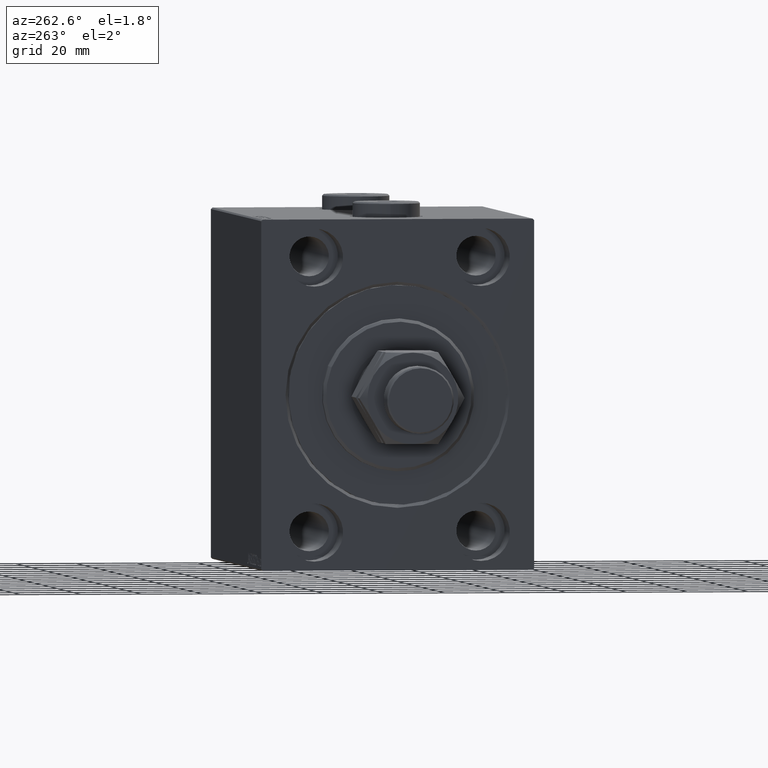
[diagram: clean part render]
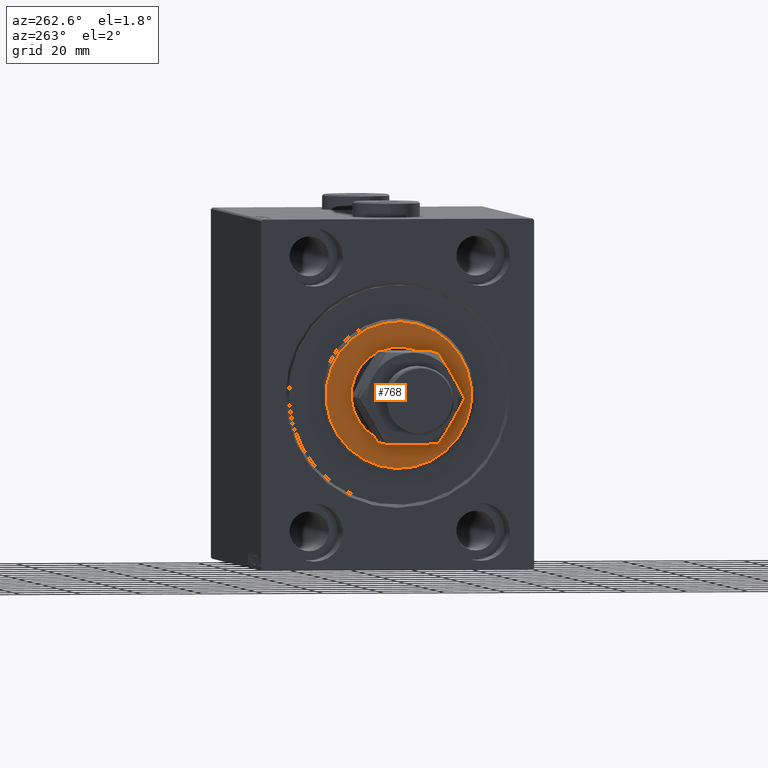
[diagram: same view with one face highlighted and labeled with its STEP entity id]
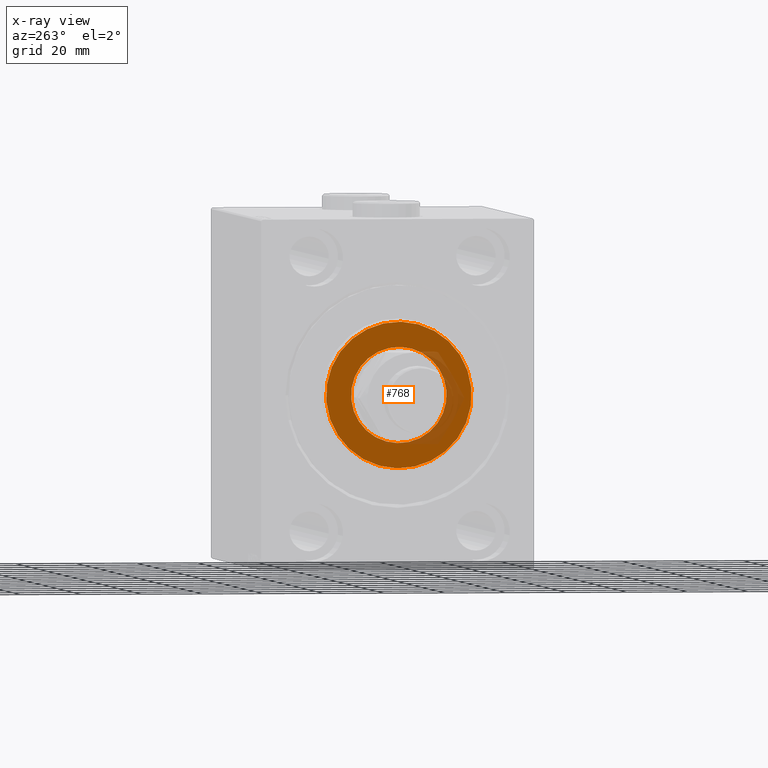
[diagram: x-ray of the same camera — body ghosted, the highlighted face saturated]
A machine part, auxiliary view. The second image highlights one B-rep face of the part: STEP entity #768.
The next image is the same camera in x-ray: the body ghosted, the highlighted face saturated — about 15% of this face is hidden behind the body in this view.
In plain terms, the highlighted planar face has unit normal (-1, 0, 0).
Its self-contained STEP definition (entity closure, byte-faithful):
#241 = CIRCLE ( 'NONE', #36689, 15.75000000000000000 ) ;
#768 = ADVANCED_FACE ( 'NONE', ( #16938, #41436 ), #8875, .T. ) ;
#3217 = EDGE_CURVE ( 'NONE', #42515, #25346, #241, .T. ) ;
#4099 = EDGE_LOOP ( 'NONE', ( #37419, #27185 ) ) ;
#6567 = VERTEX_POINT ( 'NONE', #11848 ) ;
#8875 = PLANE ( 'NONE',  #32164 ) ;
#9795 = DIRECTION ( 'NONE',  ( 1.000000000000000000, -0.000000000000000000, 0.000000000000000000 ) ) ;
#9846 = DIRECTION ( 'NONE',  ( -1.000000000000000000, 0.000000000000000000, -0.000000000000000000 ) ) ;
#11848 = CARTESIAN_POINT ( 'NONE',  ( 3.000000000000000000, 0.000000000000000000, 24.00000000000000711 ) ) ;
#12904 = DIRECTION ( 'NONE',  ( 0.000000000000000000, 0.000000000000000000, -1.000000000000000000 ) ) ;
#13257 = AXIS2_PLACEMENT_3D ( 'NONE', #29563, #36941, #18409 ) ;
#13736 = AXIS2_PLACEMENT_3D ( 'NONE', #22306, #40597, #40833 ) ;
#15320 = EDGE_CURVE ( 'NONE', #26538, #6567, #36861, .T. ) ;
#16938 = FACE_OUTER_BOUND ( 'NONE', #4099, .T. ) ;
#17718 = ORIENTED_EDGE ( 'NONE', *, *, #42908, .T. ) ;
#17896 = AXIS2_PLACEMENT_3D ( 'NONE', #44624, #19663, #20130 ) ;
#18409 = DIRECTION ( 'NONE',  ( 0.000000000000000000, 0.000000000000000000, -1.000000000000000000 ) ) ;
#18558 = EDGE_LOOP ( 'NONE', ( #41131, #17718 ) ) ;
#19663 = DIRECTION ( 'NONE',  ( 1.000000000000000000, -0.000000000000000000, 0.000000000000000000 ) ) ;
#20103 = CARTESIAN_POINT ( 'NONE',  ( 3.000000000000000000, 0.000000000000000000, 0.000000000000000000 ) ) ;
#20130 = DIRECTION ( 'NONE',  ( 0.000000000000000000, 0.000000000000000000, -1.000000000000000000 ) ) ;
#20563 = DIRECTION ( 'NONE',  ( 0.000000000000000000, 0.000000000000000000, -1.000000000000000000 ) ) ;
#22306 = CARTESIAN_POINT ( 'NONE',  ( 3.000000000000000000, 0.000000000000000000, 0.000000000000000000 ) ) ;
#25346 = VERTEX_POINT ( 'NONE', #34480 ) ;
#26538 = VERTEX_POINT ( 'NONE', #43859 ) ;
#27185 = ORIENTED_EDGE ( 'NONE', *, *, #15320, .T. ) ;
#29563 = CARTESIAN_POINT ( 'NONE',  ( 3.000000000000000000, 0.000000000000000000, 0.000000000000000000 ) ) ;
#30727 = CARTESIAN_POINT ( 'NONE',  ( 3.000000000000000000, 0.000000000000000000, 0.000000000000000000 ) ) ;
#32164 = AXIS2_PLACEMENT_3D ( 'NONE', #30727, #9795, #12904 ) ;
#33922 = EDGE_CURVE ( 'NONE', #6567, #26538, #41803, .T. ) ;
#34480 = CARTESIAN_POINT ( 'NONE',  ( 3.000000000000000000, 1.928818708657080950E-15, -15.75000000000000000 ) ) ;
#35177 = CARTESIAN_POINT ( 'NONE',  ( 3.000000000000000000, 0.000000000000000000, 15.75000000000000000 ) ) ;
#36689 = AXIS2_PLACEMENT_3D ( 'NONE', #20103, #9846, #20563 ) ;
#36861 = CIRCLE ( 'NONE', #17896, 24.00000000000000711 ) ;
#36941 = DIRECTION ( 'NONE',  ( -1.000000000000000000, 0.000000000000000000, -0.000000000000000000 ) ) ;
#37419 = ORIENTED_EDGE ( 'NONE', *, *, #33922, .T. ) ;
#40597 = DIRECTION ( 'NONE',  ( 1.000000000000000000, -0.000000000000000000, 0.000000000000000000 ) ) ;
#40833 = DIRECTION ( 'NONE',  ( 0.000000000000000000, 0.000000000000000000, -1.000000000000000000 ) ) ;
#41131 = ORIENTED_EDGE ( 'NONE', *, *, #3217, .T. ) ;
#41436 = FACE_BOUND ( 'NONE', #18558, .T. ) ;
#41803 = CIRCLE ( 'NONE', #13736, 24.00000000000000711 ) ;
#42097 = CIRCLE ( 'NONE', #13257, 15.75000000000000000 ) ;
#42515 = VERTEX_POINT ( 'NONE', #35177 ) ;
#42908 = EDGE_CURVE ( 'NONE', #25346, #42515, #42097, .T. ) ;
#43859 = CARTESIAN_POINT ( 'NONE',  ( 3.000000000000000000, 3.000384657911015469E-15, -24.00000000000000711 ) ) ;
#44624 = CARTESIAN_POINT ( 'NONE',  ( 3.000000000000000000, 0.000000000000000000, 0.000000000000000000 ) ) ;